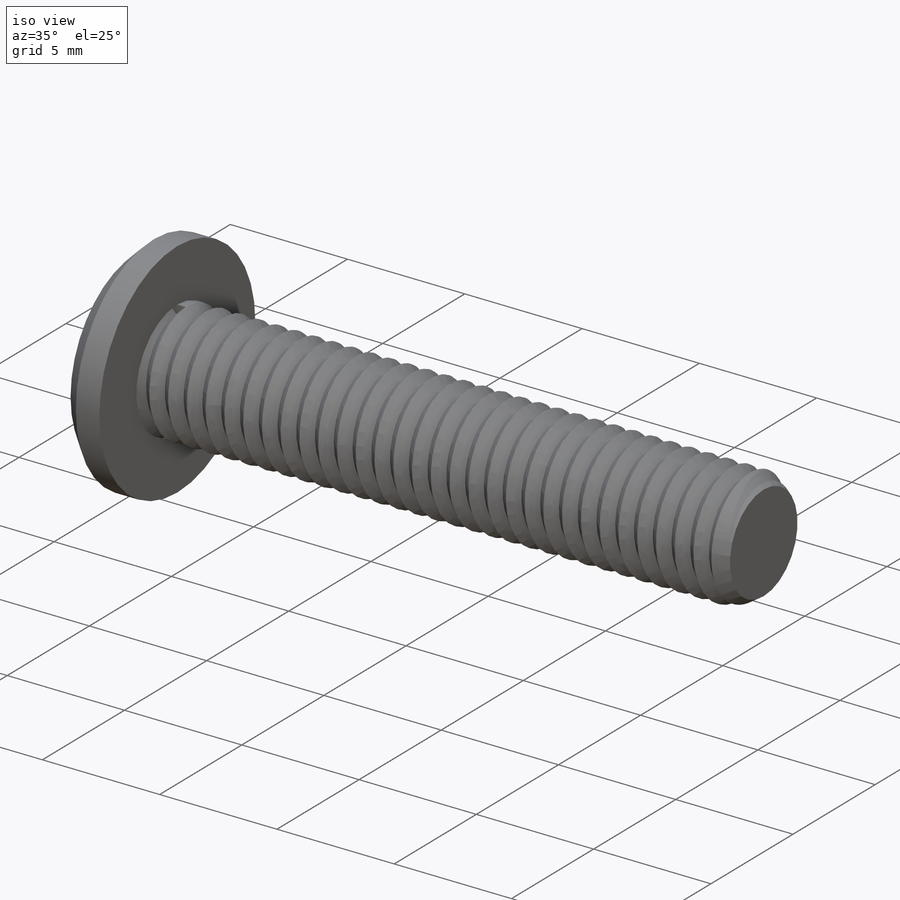
[diagram: iso view]
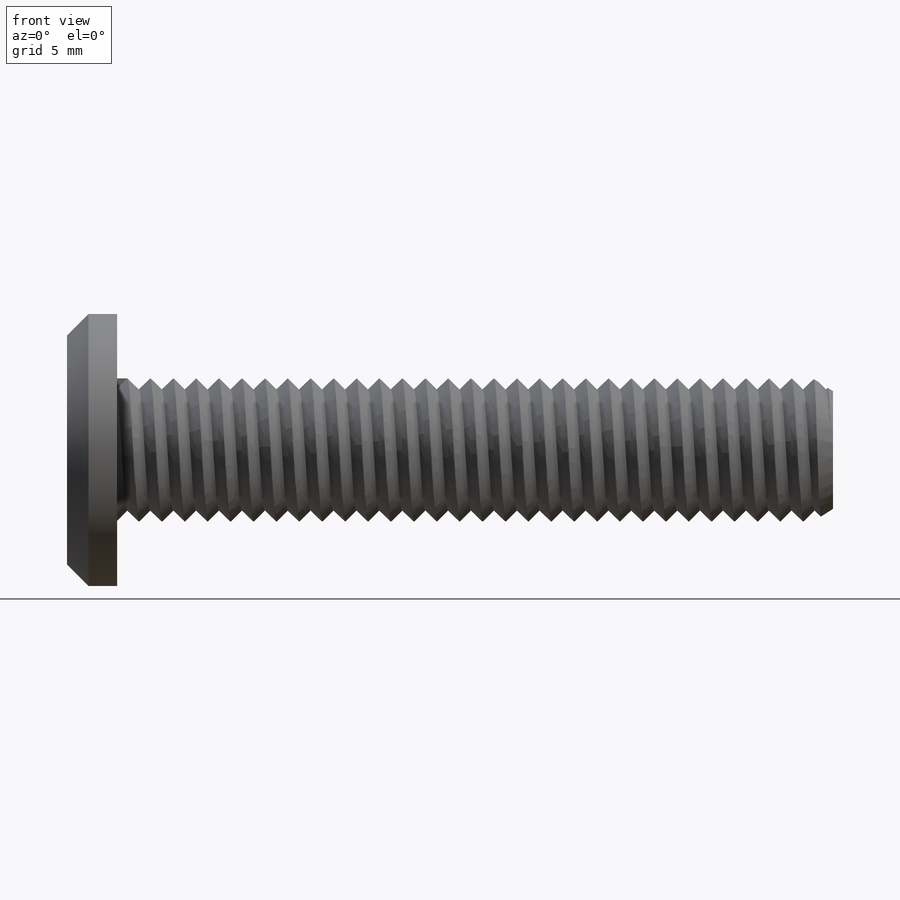
[diagram: front view]
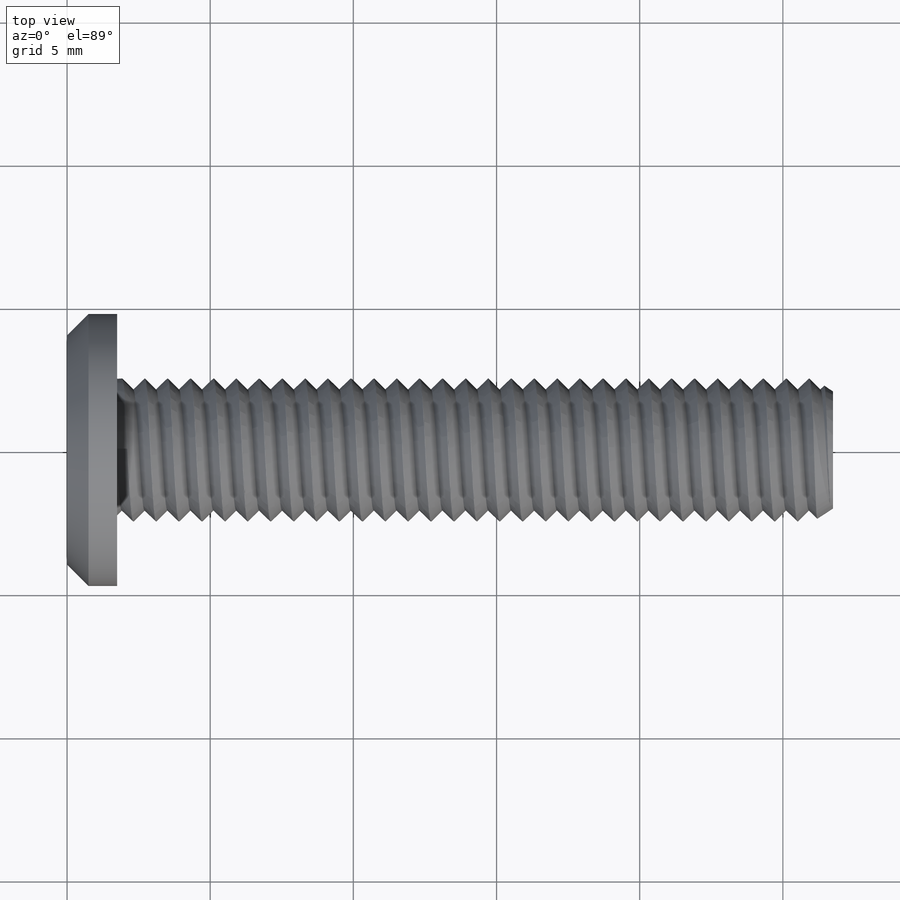
[diagram: top view]
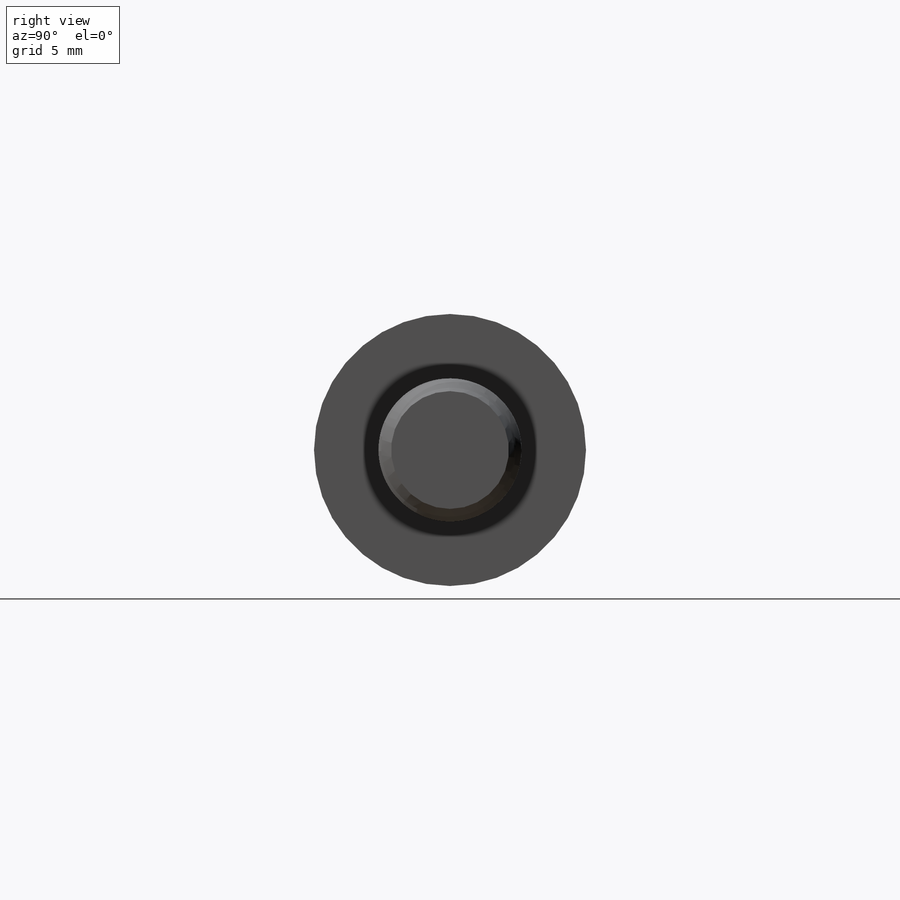
[diagram: right view]
SOLIDWORKS PART (.sldprt)
format: sldprt  version: not decoded by parser v0  size: 702,976 bytes
history: native  units: mm
features: sketch x4, material x1, plane x1, revolve x1, helix x1, sweep x1, cut_extrude x1, chamfer x1 (+12 scaffold rows collapsed)
feature tree (23):
  scaffold x12  (default folders/planes/origin — collapsed)
  material  "Material <not specified>"
  plane  "Plane1"  Offset=5mm
  sketch  "Sketch1"  dims[c1.D1=25.0mm c1.D2=2.5mm c1.D3=1.75mm c1.D4=2.055mm c2.D4=122.5deg c2.D5=~2.057236mm c2.D6=2.25mm]
  revolve  "Revolve1"  Angle=360deg
  sketch  "Sketch2"  dims[D1=5.1mm]
  helix  "Helix/Spiral1"  Pitch=48mm
  sketch  "Sketch4"  dims[c1.D1=0.78mm c1.D2=0.8mm c2.D2=45.0deg c2.D3=0.8mm c3.D3=45.0deg c4.D3=2.5mm]
  sweep  "Cut-Sweep2"
  sketch  "Sketch5"  dims[D1=3.0mm]
  cut_extrude  "Cut-Extrude1"  Depth=1mm
  chamfer  "Chamfer1"  Distance=0.75mm Angle=45deg
decode coverage: 8 of 9 modeling features carry decoded parameters
note: ~ marks probable driven/reference dimensions
note: suppression state not decoded; provenance and decode notes live in map.json
